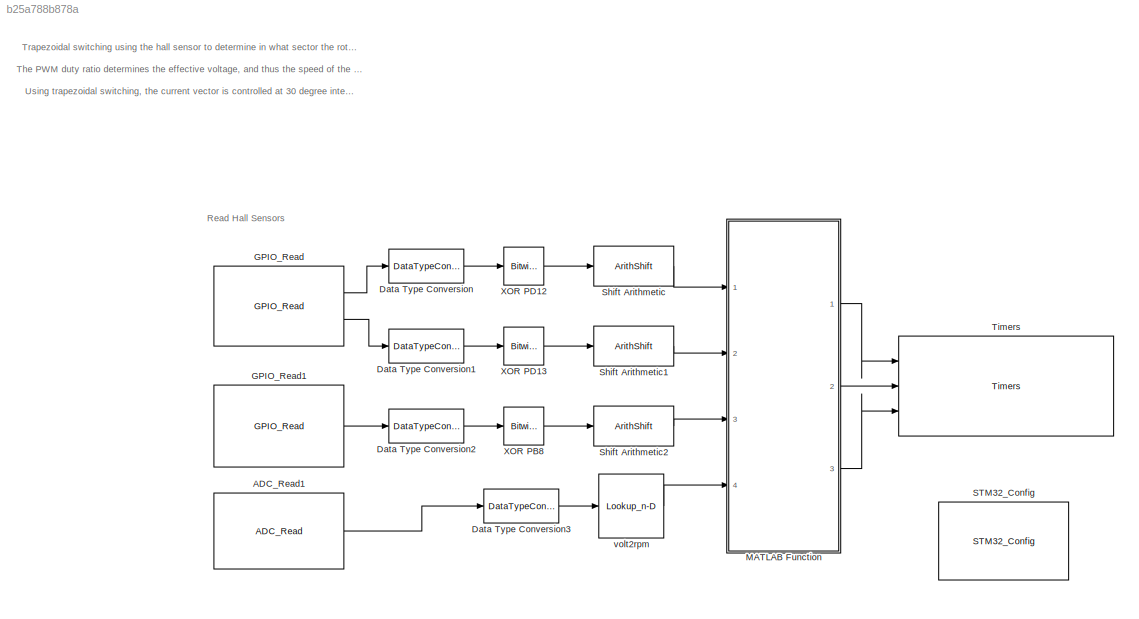
MODEL slx_b25a788b878a
KIND model
CONFIG AbsTol = auto
CONFIG EnableMultiTasking = on
CONFIG FixedStep = 1/5000
CONFIG MaxStep = auto
CONFIG MinStep = auto
CONFIG RelTol = 1e-3
CONFIG SampleTimeConstraint = Unconstrained
CONFIG Solver = FixedStepDiscrete
CONFIG SolverName = FixedStepDiscrete
CONFIG StartTime = 0.0
CONFIG StopTime = 10.0
BLOCK [Reference] ADC_Read1  REF=ADC_Lib/ADC_Read
  Ports = [0, 1]
  SourceBlock = ADC_Lib/ADC_Read
  SourceProductName = Target Support Package - STM32 Adapter
  SourceType = ADC_Read
BLOCK [DataTypeConversion] Data Type Conversion
  OutDataTypeStr = uint16
  RndMeth = Floor
  SaturateOnIntegerOverflow = off
BLOCK [DataTypeConversion] Data Type Conversion1
  OutDataTypeStr = uint16
  RndMeth = Floor
  SaturateOnIntegerOverflow = off
BLOCK [DataTypeConversion] Data Type Conversion2
  OutDataTypeStr = uint16
  RndMeth = Floor
  SaturateOnIntegerOverflow = off
BLOCK [DataTypeConversion] Data Type Conversion3
  OutDataTypeStr = int16
  RndMeth = Floor
  SaturateOnIntegerOverflow = off
BLOCK [Reference] GPIO_Read  REF=GPIO_Lib/GPIO_Read
  Ports = [0, 2]
  SourceBlock = GPIO_Lib/GPIO_Read
  SourceProductName = Target Support Package - STM32 Adapter
  SourceType = GPIO_Read
BLOCK [Reference] GPIO_Read1  REF=GPIO_Lib/GPIO_Read
  Ports = [0, 1]
  SourceBlock = GPIO_Lib/GPIO_Read
  SourceProductName = Target Support Package - STM32 Adapter
  SourceType = GPIO_Read
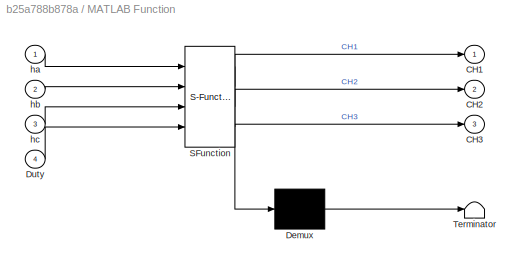
BLOCK [SubSystem] MATLAB Function
  AttributesFormatString = SystemSampleTime=%<SystemSampleTime>
  ErrorFcn = Stateflow.Translate.translate
  PermitHierarchicalResolution = ExplicitOnly
  Ports = [4, 3]
  RequestExecContextInheritance = off
  SFBlockType = MATLAB Function
  SystemSampleTime = 1/5000
  TreatAsAtomicUnit = on
BLOCK [Demux] MATLAB Function/ Demux 
  Outputs = 1
  Ports = [1, 1]
BLOCK [S-Function] MATLAB Function/ SFunction 
  EnableBusSupport = on
  FunctionName = sf_sfun
  PortCounts = [4 4]
  Ports = [4, 4]
  SFcnIsStateOwnerBlock = off
  SFunctionDeploymentMode = off
  Tag = Stateflow S-Function MotorControl_HallSensor 2
BLOCK [Terminator] MATLAB Function/ Terminator 
BLOCK [Outport] MATLAB Function/CH1
  IconDisplay = Port number
BLOCK [Outport] MATLAB Function/CH2
  IconDisplay = Port number
  Port = 2
BLOCK [Outport] MATLAB Function/CH3
  IconDisplay = Port number
  Port = 3
BLOCK [Inport] MATLAB Function/Duty
  IconDisplay = Port number
  Port = 4
BLOCK [Inport] MATLAB Function/ha
  IconDisplay = Port number
BLOCK [Inport] MATLAB Function/hb
  IconDisplay = Port number
  Port = 2
BLOCK [Inport] MATLAB Function/hc
  IconDisplay = Port number
  Port = 3
BLOCK [Reference] STM32_Config  REF=STM32_Config_Lib/STM32_Config
  Ports = []
  Priority = 0
  SourceBlock = STM32_Config_Lib/STM32_Config
  SourceProductName = Target Support Package - STM32 Adapter
  SourceType = STM32_Config
BLOCK [ArithShift] Shift Arithmetic
  BitShiftDirection = Right
  BitShiftNumber = 3
  InputPortMap = u0
  Ports = [1, 1]
BLOCK [ArithShift] Shift Arithmetic1
  BitShiftDirection = Right
  BitShiftNumber = 4
  InputPortMap = u0
  Ports = [1, 1]
BLOCK [ArithShift] Shift Arithmetic2
  BitShiftDirection = Right
  BitShiftNumber = 7
  InputPortMap = u0
  Ports = [1, 1]
BLOCK [Reference] Timers  REF=TIMERS_Lib/Timers
  Ports = [3]
  SourceBlock = TIMERS_Lib/Timers
  SourceProductName = Target Support Package - STM32 Adapter
  SourceType = Timers
BLOCK [Reference] XOR PB8  REF=simulink/Logic and Bit
Operations/Bitwise
Operator
  Ports = [1, 1]
  SourceBlock = simulink/Logic and Bit\nOperations/Bitwise\nOperator
  SourceProductBaseCode = SL
  SourceProductName = Simulink
  SourceType = Bitwise Operator
BLOCK [Reference] XOR PD12  REF=simulink/Logic and Bit
Operations/Bitwise
Operator
  Ports = [1, 1]
  SourceBlock = simulink/Logic and Bit\nOperations/Bitwise\nOperator
  SourceProductBaseCode = SL
  SourceProductName = Simulink
  SourceType = Bitwise Operator
BLOCK [Reference] XOR PD13  REF=simulink/Logic and Bit
Operations/Bitwise
Operator
  Ports = [1, 1]
  SourceBlock = simulink/Logic and Bit\nOperations/Bitwise\nOperator
  SourceProductBaseCode = SL
  SourceProductName = Simulink
  SourceType = Bitwise Operator
BLOCK [Lookup_n-D] volt2rpm
  BreakpointsForDimension1 = [0:100]*(4095/101)
  BreakpointsForDimension1Max = 4095
  BreakpointsForDimension1Min = 0
  ExtrapMethod = Clip
  NumberOfTableDimensions = 1
  OutDataTypeStr = double
  Ports = [1, 1]
  RndMeth = Simplest
  Table = [0:100]
  UseOneInputPortForAllInputData = on
ANNOTATION (root): Read Hall Sensors
ANNOTATION (root): Trapezoidal switching using the hall sensor to determine in what sector the rotor is. It then actives the correct branches by setting one branch to the ground, the other floating, and the third as PWM pulsing. The PWM duty ratio determines the effective voltage, and thus the speed of the motor. The hall sensors are read using the GPIO, and then the duty is applied to the corresponding PWM channels...<+508ch>
LINE ADC_Read1:1 -> Data Type Conversion3:1
LINE Data Type Conversion1:1 -> XOR PD13:1
LINE Data Type Conversion2:1 -> XOR PB8:1
LINE Data Type Conversion3:1 -> volt2rpm:1
LINE Data Type Conversion:1 -> XOR PD12:1
LINE GPIO_Read1:1 -> Data Type Conversion2:1
LINE GPIO_Read:1 -> Data Type Conversion:1
LINE GPIO_Read:2 -> Data Type Conversion1:1
LINE MATLAB Function:1 -> Timers:1
LINE MATLAB Function:2 -> Timers:2
LINE MATLAB Function:3 -> Timers:3
LINE Shift Arithmetic1:1 -> MATLAB Function:2
LINE Shift Arithmetic2:1 -> MATLAB Function:3
LINE Shift Arithmetic:1 -> MATLAB Function:1
LINE XOR PB8:1 -> Shift Arithmetic2:1
LINE XOR PD12:1 -> Shift Arithmetic:1
LINE XOR PD13:1 -> Shift Arithmetic1:1
LINE volt2rpm:1 -> MATLAB Function:4
CHART MATLAB Function states=1 transitions=1
  STATE_LABEL 'eML_blk_kernel()'
  STATE_LABEL 'SCRIPT:\nfunction [CH1,CH2,CH3]=Hall_State(ha,hb,hc,Duty)\n\nbc = ha & hb & ~hc;\nba = ~ha & hb & ~hc;\nca = ~ha & hb & hc;\ncb = ~ha & ~hb & hc;\nab = ha & ~hb & hc;\nac = ha & ~hb & ~hc;\n\nif bc\n    CH1 = (-1);\n    CH2 = (Duty);\n    CH3 = (0);\nelseif ba\n    CH1 = (0);\n    CH2 = (Duty);\n    CH3 = (-1);\nelseif ca\n    CH1 = (0);\n    CH2 = (-1);\n    CH3 = (Duty);\nelseif cb\n    CH1 = (-1);\n    CH2 = (0);\n    ...<+188ch>'
